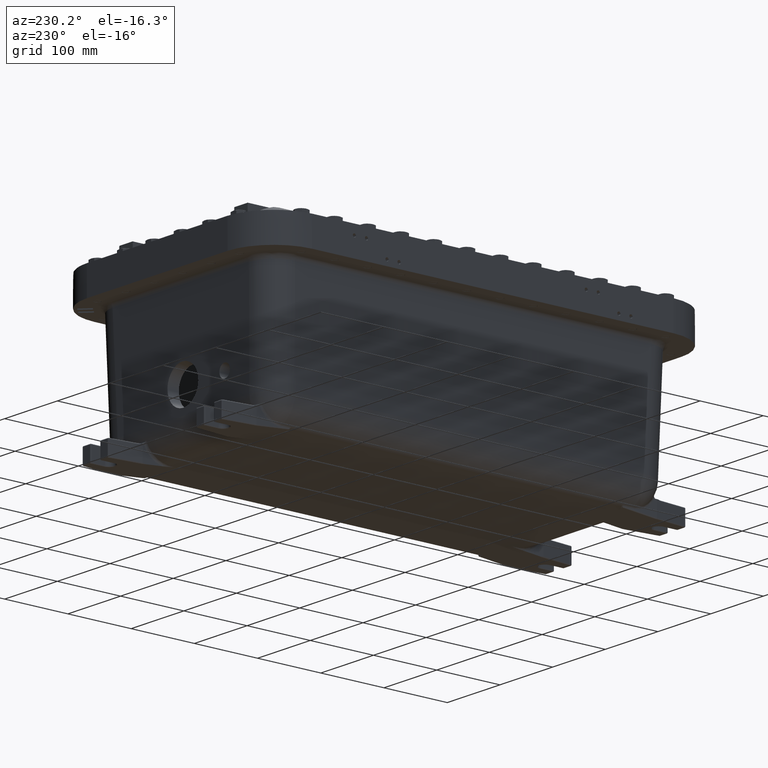
[diagram: clean part render]
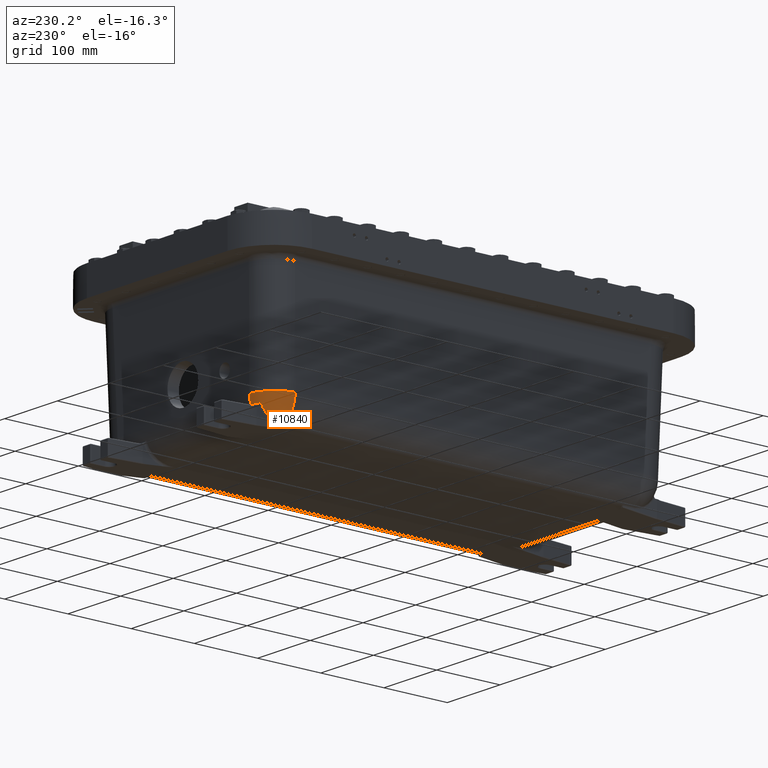
[diagram: same view with one face highlighted and labeled with its STEP entity id]
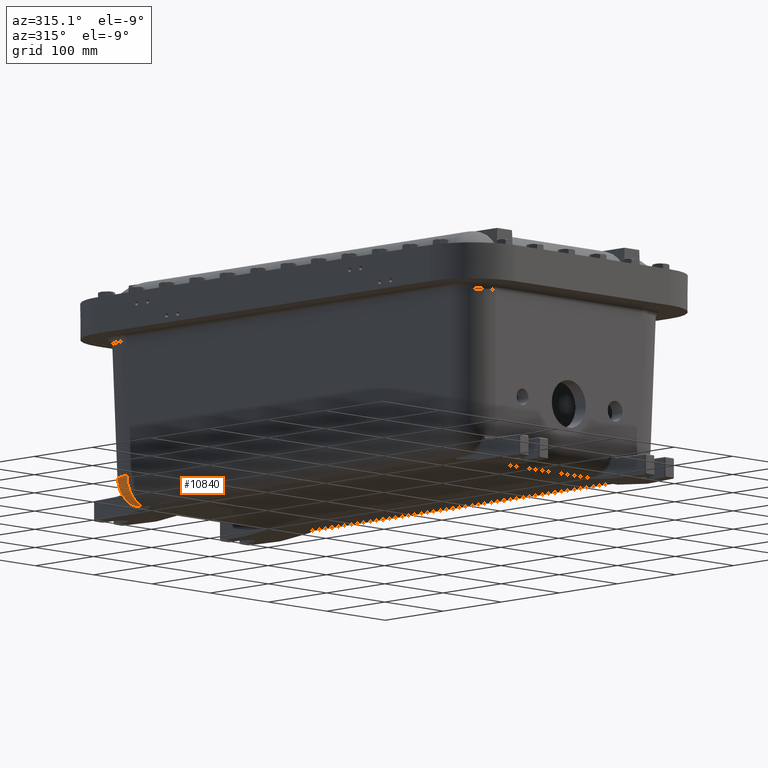
[diagram: same view with one face highlighted and labeled with its STEP entity id]
A machine part, auxiliary view. The second image highlights one B-rep face of the part: STEP entity #10840.
A second angle (auxiliary view) of the same face is appended — the face is thin or edge-on in the first view.
In plain terms, the highlighted spherical surface has radius 39.6875 mm.
Its self-contained STEP definition (entity closure, byte-faithful):
#73 = AXIS2_PLACEMENT_3D ( 'NONE', #24693, #11189, #26955 ) ;
#1075 = EDGE_LOOP ( 'NONE', ( #29116, #1311, #20307, #8778, #4350, #5190 ) ) ;
#1311 = ORIENTED_EDGE ( 'NONE', *, *, #10182, .T. ) ;
#1440 = B_SPLINE_CURVE_WITH_KNOTS ( 'NONE', 3,
 ( #5457, #3210, #16715, #21224 ),
 .UNSPECIFIED., .F., .F.,
 ( 4, 4 ),
 ( 0.0000000000000000000, 0.002326894308729615100 ),
 .UNSPECIFIED. ) ;
#1828 = CARTESIAN_POINT ( 'NONE',  ( 10.92316011466989200, 4.923160114669893300, -7.437499999999999100 ) ) ;
#2973 = DIRECTION ( 'NONE',  ( 1.224646799147353200E-016, -0.0000000000000000000, 1.000000000000000000 ) ) ;
#3210 = CARTESIAN_POINT ( 'NONE',  ( 10.98422910304766700, 5.515141489975460100, -8.882549557880596000 ) ) ;
#4058 = DIRECTION ( 'NONE',  ( -0.9996573249755573700, 0.0000000000000000000, 0.02617694830787288500 ) ) ;
#4350 = ORIENTED_EDGE ( 'NONE', *, *, #20422, .F. ) ;
#5190 = ORIENTED_EDGE ( 'NONE', *, *, #5255, .T. ) ;
#5255 = EDGE_CURVE ( 'NONE', #8563, #21092, #13280, .T. ) ;
#5457 = CARTESIAN_POINT ( 'NONE',  ( 11.01471849276700100, 5.515141489975460100, -8.880615159885570300 ) ) ;
#5516 = DIRECTION ( 'NONE',  ( -1.000000000000000000, 0.0000000000000000000, 0.0000000000000000000 ) ) ;
#5568 = CARTESIAN_POINT ( 'NONE',  ( 10.92316011466989400, 4.923160114669893300, -7.437499999999999100 ) ) ;
#6551 = EDGE_CURVE ( 'NONE', #24914, #16540, #1440, .T. ) ;
#7480 = VERTEX_POINT ( 'NONE', #22725 ) ;
#8103 = FACE_OUTER_BOUND ( 'NONE', #1075, .T. ) ;
#8563 = VERTEX_POINT ( 'NONE', #13502 ) ;
#8778 = ORIENTED_EDGE ( 'NONE', *, *, #6551, .T. ) ;
#8997 = AXIS2_PLACEMENT_3D ( 'NONE', #1828, #17567, #4058 ) ;
#10182 = EDGE_CURVE ( 'NONE', #7480, #24238, #10956, .T. ) ;
#10198 = DIRECTION ( 'NONE',  ( -0.0000000000000000000, 1.000000000000000000, -0.0000000000000000000 ) ) ;
#10840 = ADVANCED_FACE ( 'NONE', ( #8103 ), #25374, .T. ) ;
#10956 = CIRCLE ( 'NONE', #20409, 1.451381505090792100 ) ;
#11099 = EDGE_CURVE ( 'NONE', #7480, #21092, #13698, .T. ) ;
#11189 = DIRECTION ( 'NONE',  ( 0.0000000000000000000, -1.000000000000000000, 0.0000000000000000000 ) ) ;
#12245 = CARTESIAN_POINT ( 'NONE',  ( 11.01471849276700100, 5.515141489975460100, -8.880615159885570300 ) ) ;
#13280 = CIRCLE ( 'NONE', #8997, 1.562500000000000200 ) ;
#13502 = CARTESIAN_POINT ( 'NONE',  ( 10.92316011466989400, 6.485124684944201700, -7.478401481731051300 ) ) ;
#13698 = CIRCLE ( 'NONE', #73, 1.562499999999999600 ) ;
#14750 = CIRCLE ( 'NONE', #24006, 1.562499999999999600 ) ;
#16454 = CARTESIAN_POINT ( 'NONE',  ( 10.92316011466989400, 4.923160114669893300, -8.016203703703702400 ) ) ;
#16540 = VERTEX_POINT ( 'NONE', #27543 ) ;
#16715 = CARTESIAN_POINT ( 'NONE',  ( 10.95371072024559600, 5.514957248267081400, -8.883592128110199900 ) ) ;
#16824 = DIRECTION ( 'NONE',  ( 0.0000000000000000000, 1.000000000000000000, 0.0000000000000000000 ) ) ;
#17567 = DIRECTION ( 'NONE',  ( -0.02616798426497907900, -0.02616798426497906100, -0.9993150019883698700 ) ) ;
#18697 = DIRECTION ( 'NONE',  ( 1.000000000000000000, 0.0000000000000000000, 0.0000000000000000000 ) ) ;
#19021 = CARTESIAN_POINT ( 'NONE',  ( 10.92316011466989400, 4.923160114669893300, -7.437499999999999100 ) ) ;
#19559 = CARTESIAN_POINT ( 'NONE',  ( 12.24832664179429600, 5.515141489975460100, -8.016203703703704200 ) ) ;
#20272 = AXIS2_PLACEMENT_3D ( 'NONE', #23681, #10198, #25950 ) ;
#20307 = ORIENTED_EDGE ( 'NONE', *, *, #23508, .T. ) ;
#20409 = AXIS2_PLACEMENT_3D ( 'NONE', #16454, #2973, #18697 ) ;
#20422 = EDGE_CURVE ( 'NONE', #8563, #16540, #14750, .T. ) ;
#21092 = VERTEX_POINT ( 'NONE', #25706 ) ;
#21224 = CARTESIAN_POINT ( 'NONE',  ( 10.92316011466989400, 5.514771408683298400, -8.883668153015333900 ) ) ;
#21279 = DIRECTION ( 'NONE',  ( 0.0000000000000000000, 0.0000000000000000000, 1.000000000000000000 ) ) ;
#21331 = DIRECTION ( 'NONE',  ( 1.000000000000000000, 0.0000000000000000000, 0.0000000000000000000 ) ) ;
#22725 = CARTESIAN_POINT ( 'NONE',  ( 12.37454161976069000, 4.923160114669893300, -8.016203703703702400 ) ) ;
#23508 = EDGE_CURVE ( 'NONE', #24238, #24914, #27014, .T. ) ;
#23681 = CARTESIAN_POINT ( 'NONE',  ( 10.92316011466989400, 5.515141489975460100, -7.437499999999999100 ) ) ;
#24006 = AXIS2_PLACEMENT_3D ( 'NONE', #19021, #5516, #21279 ) ;
#24238 = VERTEX_POINT ( 'NONE', #19559 ) ;
#24693 = CARTESIAN_POINT ( 'NONE',  ( 10.92316011466989400, 4.923160114669893300, -7.437499999999999100 ) ) ;
#24914 = VERTEX_POINT ( 'NONE', #12245 ) ;
#25359 = AXIS2_PLACEMENT_3D ( 'NONE', #5568, #16824, #21331 ) ;
#25374 = SPHERICAL_SURFACE ( 'NONE', #25359, 1.562500000000000000 ) ;
#25706 = CARTESIAN_POINT ( 'NONE',  ( 12.48512468494420000, 4.923160114669893300, -7.478401481731051300 ) ) ;
#25950 = DIRECTION ( 'NONE',  ( -4.534135171165618500E-015, 0.0000000000000000000, -1.000000000000000000 ) ) ;
#26955 = DIRECTION ( 'NONE',  ( 0.0000000000000000000, 0.0000000000000000000, -1.000000000000000000 ) ) ;
#27014 = CIRCLE ( 'NONE', #20272, 1.446016701594877300 ) ;
#27543 = CARTESIAN_POINT ( 'NONE',  ( 10.92316011466989400, 5.514771408683298400, -8.883668153015333900 ) ) ;
#29116 = ORIENTED_EDGE ( 'NONE', *, *, #11099, .F. ) ;